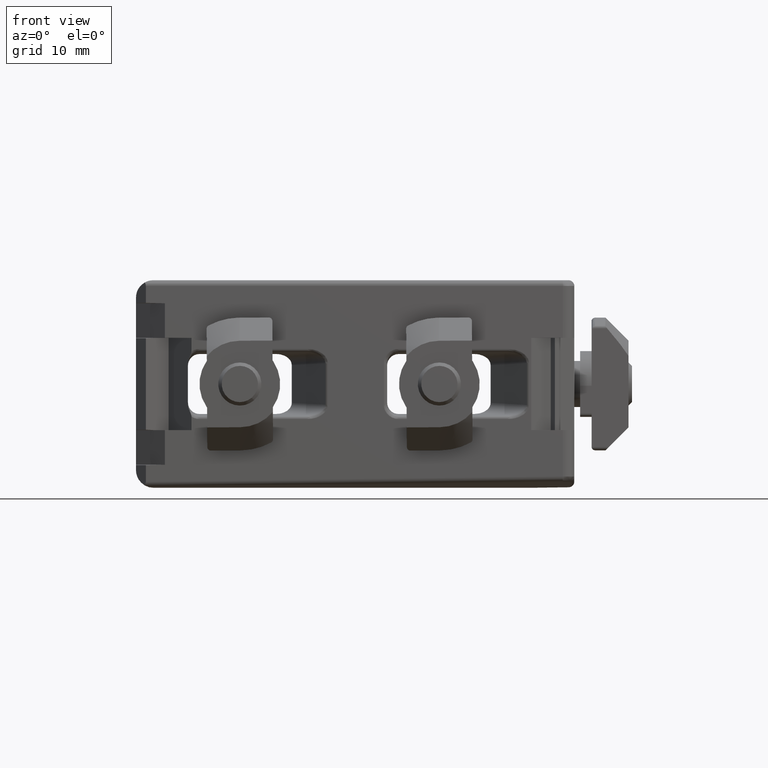
[diagram: clean part render]
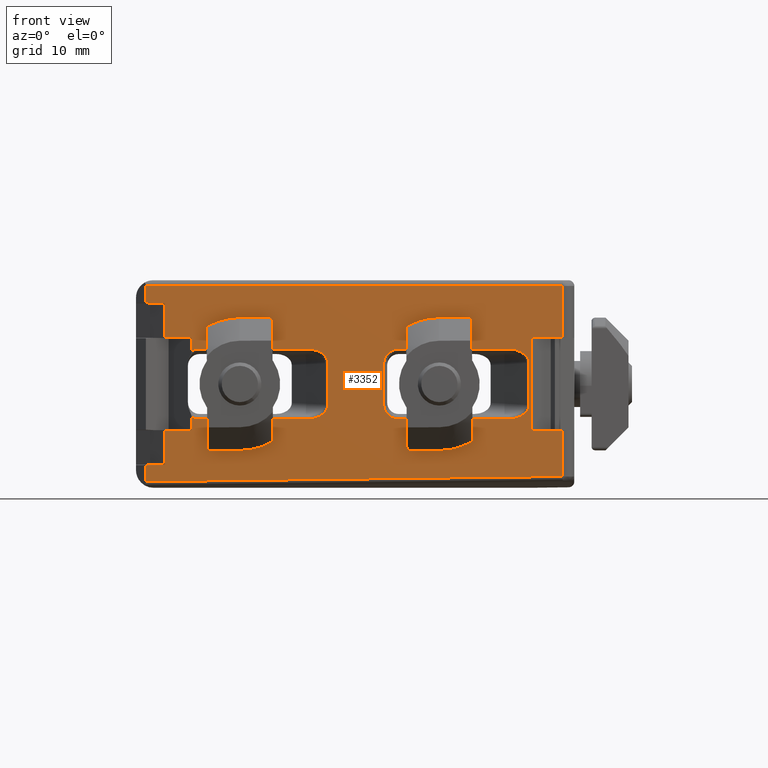
[diagram: same view with one face highlighted and labeled with its STEP entity id]
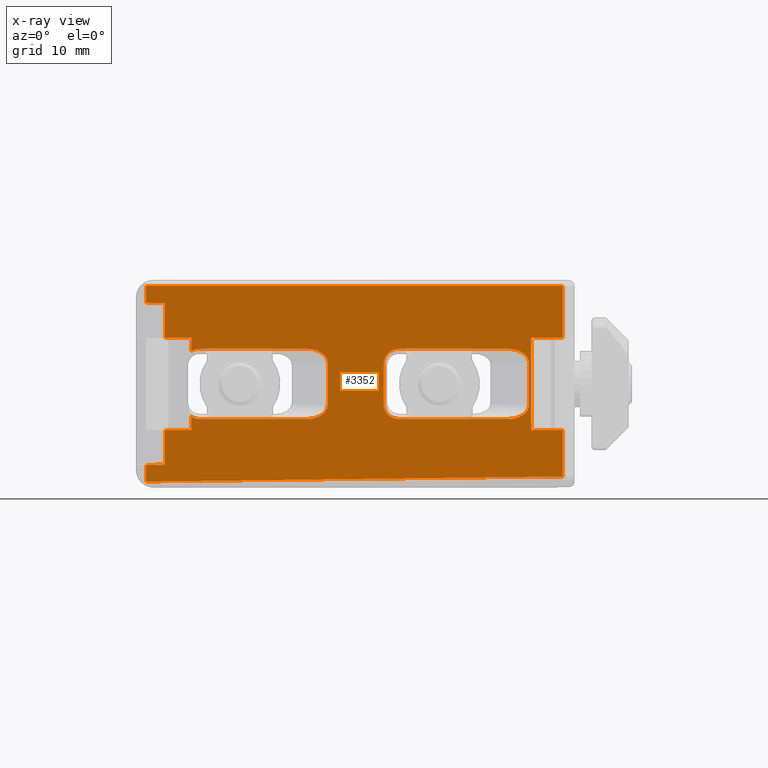
[diagram: x-ray of the same camera — body ghosted, the highlighted face saturated]
A machine part, front view. The second image highlights one B-rep face of the part: STEP entity #3352.
The next image is the same camera in x-ray: the body ghosted, the highlighted face saturated — about 0% of this face is hidden behind the body in this view.
In plain terms, the highlighted planar face has unit normal (0, 1, 0).
Its self-contained STEP definition (entity closure, byte-faithful):
#60=FACE_BOUND($,#1108,.T.);
#79=(
BOUNDED_CURVE()
B_SPLINE_CURVE(3,(#5079,#5080,#5081,#5082,#5083,#5084,#5085,#5086,#5087,
#5088),.UNSPECIFIED.,.F.,.F.)
B_SPLINE_CURVE_WITH_KNOTS((4,2,2,2,4),(1.64482745040171,2.02827264164958,
2.41171783289745,2.79516302414533,3.1786082153932),.UNSPECIFIED.)
CURVE()
GEOMETRIC_REPRESENTATION_ITEM()
RATIONAL_B_SPLINE_CURVE((1.,1.,1.,1.,1.,1.,1.,1.,1.,1.))
REPRESENTATION_ITEM($)
);
#80=(
BOUNDED_CURVE()
B_SPLINE_CURVE(3,(#5091,#5092,#5093,#5094,#5095,#5096,#5097,#5098,#5099,
#5100),.UNSPECIFIED.,.F.,.F.)
B_SPLINE_CURVE_WITH_KNOTS((4,2,2,2,4),(3.10457709178639,3.48802228303426,
3.87146747428213,4.25491266553,4.63835785677788),.UNSPECIFIED.)
CURVE()
GEOMETRIC_REPRESENTATION_ITEM()
RATIONAL_B_SPLINE_CURVE((1.,1.,1.,1.,1.,1.,1.,1.,1.,1.))
REPRESENTATION_ITEM($)
);
#81=(
BOUNDED_CURVE()
B_SPLINE_CURVE(3,(#5118,#5119,#5120,#5121,#5122,#5123,#5124,#5125,#5126,
#5127),.UNSPECIFIED.,.F.,.F.)
B_SPLINE_CURVE_WITH_KNOTS((4,2,2,2,4),(6.15182854200022E-016,0.392699081698725,
0.785398163397449,1.17809724509617,1.5707963267949),.UNSPECIFIED.)
CURVE()
GEOMETRIC_REPRESENTATION_ITEM()
RATIONAL_B_SPLINE_CURVE((1.,1.,1.,1.,1.,1.,1.,1.,1.,1.))
REPRESENTATION_ITEM($)
);
#82=(
BOUNDED_CURVE()
B_SPLINE_CURVE(3,(#5131,#5132,#5133,#5134,#5135,#5136,#5137,#5138,#5139,
#5140),.UNSPECIFIED.,.F.,.F.)
B_SPLINE_CURVE_WITH_KNOTS((4,2,2,2,4),(4.71238898038469,5.10508806208341,
5.49778714378214,5.89048622548086,6.28318530717959),.UNSPECIFIED.)
CURVE()
GEOMETRIC_REPRESENTATION_ITEM()
RATIONAL_B_SPLINE_CURVE((1.,1.,1.,1.,1.,1.,1.,1.,1.,1.))
REPRESENTATION_ITEM($)
);
#97=PLANE($,#3568);
#188=LINE($,#5037,#476);
#189=LINE($,#5041,#477);
#190=LINE($,#5043,#478);
#191=LINE($,#5045,#479);
#192=LINE($,#5047,#480);
#193=LINE($,#5049,#481);
#194=LINE($,#5051,#482);
#195=LINE($,#5053,#483);
#196=LINE($,#5055,#484);
#197=LINE($,#5057,#485);
#198=LINE($,#5059,#486);
#199=LINE($,#5061,#487);
#200=LINE($,#5063,#488);
#201=LINE($,#5065,#489);
#202=LINE($,#5067,#490);
#203=LINE($,#5069,#491);
#204=LINE($,#5071,#492);
#205=LINE($,#5073,#493);
#206=LINE($,#5077,#494);
#207=LINE($,#5090,#495);
#208=LINE($,#5116,#496);
#209=LINE($,#5129,#497);
#210=LINE($,#5141,#498);
#211=LINE($,#5144,#499);
#476=VECTOR($,#3927,9.35382318074275);
#477=VECTOR($,#3930,1.15807510946003);
#478=VECTOR($,#3931,2.30832611206846);
#479=VECTOR($,#3932,3.);
#480=VECTOR($,#3933,1.65188785851579);
#481=VECTOR($,#3934,1.42769561648364);
#482=VECTOR($,#3935,36.1542254089212);
#483=VECTOR($,#3936,4.01856263968307);
#484=VECTOR($,#3937,2.73044737829953);
#485=VECTOR($,#3938,8.);
#486=VECTOR($,#3939,2.73044737829953);
#487=VECTOR($,#3940,4.5);
#488=VECTOR($,#3941,36.151471862576);
#489=VECTOR($,#3942,1.46293000901611);
#490=VECTOR($,#3943,1.65188785851579);
#491=VECTOR($,#3944,3.);
#492=VECTOR($,#3945,2.30832611206849);
#493=VECTOR($,#3946,1.15807510946004);
#494=VECTOR($,#3949,9.35382318074275);
#495=VECTOR($,#3950,3.5766078460393);
#496=VECTOR($,#3951,9.47411315212172);
#497=VECTOR($,#3952,3.48025731613258);
#498=VECTOR($,#3953,9.47411315212172);
#499=VECTOR($,#3956,3.57991173690054);
#871=B_SPLINE_CURVE_WITH_KNOTS($,3,(#5000,#5001,#5002,#5003,#5004,#5005,
#5006,#5007,#5008,#5009,#5010,#5011,#5012),.UNSPECIFIED.,.F.,.F.,(4,3,3,
3,4),(4.78397082127156,5.17143871342924,5.53358310889399,5.89572539318426,
6.28318530717959),.UNSPECIFIED.);
#873=B_SPLINE_CURVE_WITH_KNOTS($,3,(#5102,#5103,#5104,#5105,#5106,#5107,
#5108,#5109,#5110,#5111,#5112,#5113,#5114),.UNSPECIFIED.,.F.,.F.,(4,3,3,
3,4),(3.12750626678511E-017,0.387459913995324,0.74960219828563,1.11174659375039,
1.49921448590803),.UNSPECIFIED.);
#913=FACE_OUTER_BOUND($,#1107,.T.);
#1107=EDGE_LOOP($,(#2325,#2326,#2327,#2328,#2329,#2330,#2331,#2332,#2333,
#2334,#2335,#2336,#2337,#2338,#2339,#2340,#2341,#2342,#2343,#2344,#2345,
#2346,#2347,#2348));
#1108=EDGE_LOOP($,(#2349,#2350,#2351,#2352,#2353,#2354,#2355,#2356,#2357,
#2358));
#1408=ELLIPSE($,#3559,1.431912417923,1.12629157555662);
#1413=ELLIPSE($,#3569,1.15428906573188,1.00635998173245);
#1414=ELLIPSE($,#3570,1.15428906573358,1.00635998173576);
#1415=ELLIPSE($,#3571,1.43191235337777,1.12629155014146);
#1485=VERTEX_POINT($,#4947);
#1486=VERTEX_POINT($,#4949);
#1489=VERTEX_POINT($,#4997);
#1490=VERTEX_POINT($,#4999);
#1498=VERTEX_POINT($,#5035);
#1499=VERTEX_POINT($,#5036);
#1500=VERTEX_POINT($,#5038);
#1501=VERTEX_POINT($,#5040);
#1502=VERTEX_POINT($,#5042);
#1503=VERTEX_POINT($,#5044);
#1504=VERTEX_POINT($,#5046);
#1505=VERTEX_POINT($,#5048);
#1506=VERTEX_POINT($,#5050);
#1507=VERTEX_POINT($,#5052);
#1508=VERTEX_POINT($,#5054);
#1509=VERTEX_POINT($,#5056);
#1510=VERTEX_POINT($,#5058);
#1511=VERTEX_POINT($,#5060);
#1512=VERTEX_POINT($,#5062);
#1513=VERTEX_POINT($,#5064);
#1514=VERTEX_POINT($,#5066);
#1515=VERTEX_POINT($,#5068);
#1516=VERTEX_POINT($,#5070);
#1517=VERTEX_POINT($,#5072);
#1518=VERTEX_POINT($,#5074);
#1519=VERTEX_POINT($,#5076);
#1520=VERTEX_POINT($,#5078);
#1521=VERTEX_POINT($,#5089);
#1522=VERTEX_POINT($,#5101);
#1523=VERTEX_POINT($,#5115);
#1524=VERTEX_POINT($,#5117);
#1525=VERTEX_POINT($,#5128);
#1526=VERTEX_POINT($,#5130);
#1527=VERTEX_POINT($,#5142);
#1806=EDGE_CURVE($,#1486,#1485,#1408,.T.);
#1810=EDGE_CURVE($,#1490,#1489,#871,.T.);
#1819=EDGE_CURVE($,#1498,#1499,#188,.T.);
#1820=EDGE_CURVE($,#1499,#1500,#1413,.T.);
#1821=EDGE_CURVE($,#1501,#1500,#189,.T.);
#1822=EDGE_CURVE($,#1502,#1501,#190,.T.);
#1823=EDGE_CURVE($,#1502,#1503,#191,.T.);
#1824=EDGE_CURVE($,#1504,#1503,#192,.T.);
#1825=EDGE_CURVE($,#1504,#1505,#193,.T.);
#1826=EDGE_CURVE($,#1505,#1506,#194,.T.);
#1827=EDGE_CURVE($,#1506,#1507,#195,.T.);
#1828=EDGE_CURVE($,#1508,#1507,#196,.T.);
#1829=EDGE_CURVE($,#1508,#1509,#197,.T.);
#1830=EDGE_CURVE($,#1509,#1510,#198,.T.);
#1831=EDGE_CURVE($,#1510,#1511,#199,.T.);
#1832=EDGE_CURVE($,#1511,#1512,#200,.T.);
#1833=EDGE_CURVE($,#1512,#1513,#201,.T.);
#1834=EDGE_CURVE($,#1513,#1514,#202,.T.);
#1835=EDGE_CURVE($,#1515,#1514,#203,.T.);
#1836=EDGE_CURVE($,#1515,#1516,#204,.T.);
#1837=EDGE_CURVE($,#1517,#1516,#205,.T.);
#1838=EDGE_CURVE($,#1517,#1518,#1414,.T.);
#1839=EDGE_CURVE($,#1518,#1519,#206,.T.);
#1840=EDGE_CURVE($,#1519,#1520,#79,.T.);
#1841=EDGE_CURVE($,#1520,#1521,#207,.T.);
#1842=EDGE_CURVE($,#1521,#1498,#80,.T.);
#1843=EDGE_CURVE($,#1485,#1522,#873,.T.);
#1844=EDGE_CURVE($,#1522,#1523,#208,.T.);
#1845=EDGE_CURVE($,#1523,#1524,#81,.T.);
#1846=EDGE_CURVE($,#1524,#1525,#209,.T.);
#1847=EDGE_CURVE($,#1525,#1526,#82,.T.);
#1848=EDGE_CURVE($,#1526,#1490,#210,.T.);
#1849=EDGE_CURVE($,#1489,#1527,#1415,.T.);
#1850=EDGE_CURVE($,#1527,#1486,#211,.T.);
#2325=ORIENTED_EDGE($,*,*,#1819,.T.);
#2326=ORIENTED_EDGE($,*,*,#1820,.T.);
#2327=ORIENTED_EDGE($,*,*,#1821,.F.);
#2328=ORIENTED_EDGE($,*,*,#1822,.F.);
#2329=ORIENTED_EDGE($,*,*,#1823,.T.);
#2330=ORIENTED_EDGE($,*,*,#1824,.F.);
#2331=ORIENTED_EDGE($,*,*,#1825,.T.);
#2332=ORIENTED_EDGE($,*,*,#1826,.T.);
#2333=ORIENTED_EDGE($,*,*,#1827,.T.);
#2334=ORIENTED_EDGE($,*,*,#1828,.F.);
#2335=ORIENTED_EDGE($,*,*,#1829,.T.);
#2336=ORIENTED_EDGE($,*,*,#1830,.T.);
#2337=ORIENTED_EDGE($,*,*,#1831,.T.);
#2338=ORIENTED_EDGE($,*,*,#1832,.T.);
#2339=ORIENTED_EDGE($,*,*,#1833,.T.);
#2340=ORIENTED_EDGE($,*,*,#1834,.T.);
#2341=ORIENTED_EDGE($,*,*,#1835,.F.);
#2342=ORIENTED_EDGE($,*,*,#1836,.T.);
#2343=ORIENTED_EDGE($,*,*,#1837,.F.);
#2344=ORIENTED_EDGE($,*,*,#1838,.T.);
#2345=ORIENTED_EDGE($,*,*,#1839,.T.);
#2346=ORIENTED_EDGE($,*,*,#1840,.T.);
#2347=ORIENTED_EDGE($,*,*,#1841,.T.);
#2348=ORIENTED_EDGE($,*,*,#1842,.T.);
#2349=ORIENTED_EDGE($,*,*,#1806,.T.);
#2350=ORIENTED_EDGE($,*,*,#1843,.T.);
#2351=ORIENTED_EDGE($,*,*,#1844,.T.);
#2352=ORIENTED_EDGE($,*,*,#1845,.T.);
#2353=ORIENTED_EDGE($,*,*,#1846,.T.);
#2354=ORIENTED_EDGE($,*,*,#1847,.T.);
#2355=ORIENTED_EDGE($,*,*,#1848,.T.);
#2356=ORIENTED_EDGE($,*,*,#1810,.T.);
#2357=ORIENTED_EDGE($,*,*,#1849,.T.);
#2358=ORIENTED_EDGE($,*,*,#1850,.T.);
#3352=ADVANCED_FACE($,(#913,#60),#97,.F.);
#3559=AXIS2_PLACEMENT_3D($,#4950,#3905,#3906);
#3568=AXIS2_PLACEMENT_3D($,#5034,#3925,#3926);
#3569=AXIS2_PLACEMENT_3D($,#5039,#3928,#3929);
#3570=AXIS2_PLACEMENT_3D($,#5075,#3947,#3948);
#3571=AXIS2_PLACEMENT_3D($,#5143,#3954,#3955);
#3905=DIRECTION('center_axis',(-2.39531331161889E-015,1.,5.88654346350658E-017));
#3906=DIRECTION('ref_axis',(0.998276773851941,2.39463993920688E-015,-0.0586811962025324));
#3925=DIRECTION('center_axis',(0.,1.,0.));
#3926=DIRECTION('ref_axis',(0.,0.,1.));
#3927=DIRECTION($,(-1.,0.,0.));
#3928=DIRECTION('center_axis',(-2.39759247924186E-015,1.,6.01347607093299E-017));
#3929=DIRECTION('ref_axis',(0.934861026502286,2.26276444152005E-015,-0.355013888639715));
#3930=DIRECTION($,(0.,0.,1.));
#3931=DIRECTION($,(1.,0.,0.));
#3932=DIRECTION($,(0.,0.,-1.));
#3933=DIRECTION($,(0.999748169382312,2.38075675497547E-015,0.0224409851993151));
#3934=DIRECTION($,(0.,0.,-1.));
#3935=DIRECTION($,(0.999923838878746,2.38117508666448E-015,0.0123416547509368));
#3936=DIRECTION($,(0.,0.,1.));
#3937=DIRECTION($,(1.,0.,0.));
#3938=DIRECTION($,(0.,0.,1.));
#3939=DIRECTION($,(1.,0.,0.));
#3940=DIRECTION($,(0.,0.,1.));
#3941=DIRECTION($,(-1.,0.,0.));
#3942=DIRECTION($,(0.,0.,-1.));
#3943=DIRECTION($,(0.999748169382312,2.38075675497547E-015,-0.0224409851993151));
#3944=DIRECTION($,(0.,0.,1.));
#3945=DIRECTION($,(1.,0.,0.));
#3946=DIRECTION($,(0.,0.,1.));
#3947=DIRECTION('center_axis',(-2.3610054883285E-015,1.,6.29124732271768E-017));
#3948=DIRECTION('ref_axis',(0.934861026500494,2.18487721262746E-015,0.355013888644433));
#3949=DIRECTION($,(1.,0.,0.));
#3950=DIRECTION($,(0.,0.,-1.));
#3951=DIRECTION($,(-1.,0.,0.));
#3952=DIRECTION($,(0.,0.,1.));
#3953=DIRECTION($,(1.,0.,0.));
#3954=DIRECTION('center_axis',(-2.36291360878531E-015,1.,-5.72883958966303E-017));
#3955=DIRECTION('ref_axis',(0.998276773695475,2.36220352565156E-015,0.0586811988643096));
#3956=DIRECTION($,(0.,0.,-1.));
#4947=CARTESIAN_POINT('',(-3.92424956972963,-9.38680463776862E-015,-1.83323319857511));
#4949=CARTESIAN_POINT('',(-3.92319303375948,-9.34252104904215E-015,-1.78995586845027));
#4950=CARTESIAN_POINT('Origin',(-5.35416505250662,-1.27970171664036E-014,
-1.75794946127183));
#4997=CARTESIAN_POINT('',(-3.92424956972963,-9.60364507226572E-015,1.83323319857511));
#4999=CARTESIAN_POINT('',(-5.75639550064159,-1.37080295740178E-014,3.04191270786359));
#5000=CARTESIAN_POINT('Ctrl Pts',(-5.75639550064159,-1.39818712163731E-014,
3.04191270786359));
#5001=CARTESIAN_POINT('Ctrl Pts',(-5.53278435057012,-1.34494860989137E-014,
3.04191270785801));
#5002=CARTESIAN_POINT('Ctrl Pts',(-5.29271039137049,-1.28459004598137E-014,
3.01393526344642));
#5003=CARTESIAN_POINT('Ctrl Pts',(-5.06414502566832,-1.23014933742921E-014,
2.95154224992796));
#5004=CARTESIAN_POINT('Ctrl Pts',(-4.85051786362025,-1.18096568821763E-014,
2.89322701757144));
#5005=CARTESIAN_POINT('Ctrl Pts',(-4.64783885541821,-1.13687143104892E-014,
2.80493139595309));
#5006=CARTESIAN_POINT('Ctrl Pts',(-4.47813715510773,-1.09653497219753E-014,
2.69297799508258));
#5007=CARTESIAN_POINT('Ctrl Pts',(-4.30843644409848,-1.05603639683613E-014,
2.58102524686102));
#5008=CARTESIAN_POINT('Ctrl Pts',(-4.17230203898209,-1.02100156056378E-014,
2.44580379461117));
#5009=CARTESIAN_POINT('Ctrl Pts',(-4.07973377017922,-9.99024539309612E-015,
2.30211924647191));
#5010=CARTESIAN_POINT('Ctrl Pts',(-3.98069398657773,-9.73834199586941E-015,
2.14838960737827));
#5011=CARTESIAN_POINT('Ctrl Pts',(-3.9316989445029,-9.61129010639919E-015,
1.98566240847358));
#5012=CARTESIAN_POINT('Ctrl Pts',(-3.92424956972963,-9.59193661997926E-015,
1.83323319857511));
#5034=CARTESIAN_POINT('Origin',(0.,0.,9.));
#5035=CARTESIAN_POINT('',(-23.1461768192573,-5.51192975410497E-014,-3.04191270786359));
#5036=CARTESIAN_POINT('',(-32.5,-7.73940847368675E-014,-3.04191270786359));
#5037=CARTESIAN_POINT($,(-23.1461768192573,-7.73940847368674E-014,-3.04191270786359));
#5038=CARTESIAN_POINT('',(-33.191673886656,-5.72492359720601E-014,-2.84192489053998));
#5039=CARTESIAN_POINT('Origin',(-32.6034919272537,-7.75744241350076E-014,
-2.01573337619113));
#5040=CARTESIAN_POINT('',(-33.1916738879315,-1.38777878078145E-014,-4.));
#5041=CARTESIAN_POINT($,(-33.1916738879315,-1.38777878078145E-014,-4.));
#5042=CARTESIAN_POINT('',(-35.5,-2.63420227360954E-014,-4.));
#5043=CARTESIAN_POINT($,(-35.5,-1.38777878078145E-014,-4.));
#5044=CARTESIAN_POINT('',(-35.5,-5.73496870652501E-015,-7.));
#5045=CARTESIAN_POINT($,(-35.5,-5.73496870652501E-015,-4.));
#5046=CARTESIAN_POINT('',(-37.151471862576,-8.84708972748171E-014,-7.03706999098389));
#5047=CARTESIAN_POINT($,(-37.151471862576,-8.86216517785834E-014,-7.03706999098388));
#5048=CARTESIAN_POINT('',(-37.151471862576,-8.84708972748171E-014,-8.46476560746753));
#5049=CARTESIAN_POINT($,(-37.151471862576,-8.84708972748171E-014,-7.03706999098389));
#5050=CARTESIAN_POINT('',(-0.999999999999998,-2.38135645344207E-015,-8.01856263968307));
#5051=CARTESIAN_POINT($,(-37.151471862576,-8.84708972748172E-014,-8.46476560746753));
#5052=CARTESIAN_POINT('',(-0.999999999999999,-2.16160498731835E-015,-4.));
#5053=CARTESIAN_POINT($,(-0.999999999999998,-2.38135645344207E-015,-8.01856263968307));
#5054=CARTESIAN_POINT('',(-3.73044737829953,-8.06375365786094E-015,-4.));
#5055=CARTESIAN_POINT($,(-3.73044737829953,-8.06375365786094E-015,-4.));
#5056=CARTESIAN_POINT('',(-3.73044737829953,-8.06375365786094E-015,4.));
#5057=CARTESIAN_POINT($,(-3.73044737829953,-8.06375365786094E-015,-4.));
#5058=CARTESIAN_POINT('',(-0.999999999999999,-2.16160498731835E-015,4.));
#5059=CARTESIAN_POINT($,(-3.73044737829953,-8.06375365786094E-015,4.));
#5060=CARTESIAN_POINT('',(-0.999999999999998,-2.38135645344207E-015,8.5));
#5061=CARTESIAN_POINT($,(-0.999999999999998,-2.38135645344207E-015,4.));
#5062=CARTESIAN_POINT('',(-37.151471862576,-8.84708972748171E-014,8.5));
#5063=CARTESIAN_POINT($,(-0.999999999999998,0.,8.5));
#5064=CARTESIAN_POINT('',(-37.151471862576,-8.84708972748171E-014,7.03706999098388));
#5065=CARTESIAN_POINT($,(-37.151471862576,-8.84708972748171E-014,8.5));
#5066=CARTESIAN_POINT('',(-35.5,-5.73496870652501E-015,7.));
#5067=CARTESIAN_POINT($,(-37.151471862576,-8.84708972748172E-014,7.03706999098389));
#5068=CARTESIAN_POINT('',(-35.5,-5.73496870652501E-015,4.));
#5069=CARTESIAN_POINT($,(-35.5,-5.73496870652501E-015,4.));
#5070=CARTESIAN_POINT('',(-33.1916738879315,-1.38777878078145E-014,4.));
#5071=CARTESIAN_POINT($,(-35.5,-1.38777878078145E-014,4.));
#5072=CARTESIAN_POINT('',(-33.191673886656,-5.71988410778177E-014,2.84192489053996));
#5073=CARTESIAN_POINT($,(-33.1916738879315,-1.38777878078145E-014,2.84236046143461));
#5074=CARTESIAN_POINT('',(-32.5,-7.73940847368675E-014,3.04191270786359));
#5075=CARTESIAN_POINT('Origin',(-32.6034919272539,-7.74186871095599E-014,
2.01573337618753));
#5076=CARTESIAN_POINT('',(-23.1461768192573,-5.51192975410497E-014,3.04191270786359));
#5077=CARTESIAN_POINT($,(-32.5,-3.3749997260092E-031,3.04191270786359));
#5078=CARTESIAN_POINT('',(-21.3757359312881,-5.09032467070465E-014,1.78830392301965));
#5079=CARTESIAN_POINT('Ctrl Pts',(-23.1461768192573,-5.49560397189452E-014,
3.04191270786359));
#5080=CARTESIAN_POINT('Ctrl Pts',(-22.9113066371027,-5.44009282066327E-014,
3.04191270785697));
#5081=CARTESIAN_POINT('Ctrl Pts',(-22.6782998527069,-5.38535910569739E-014,
3.00962730289365));
#5082=CARTESIAN_POINT('Ctrl Pts',(-22.24926356127,-5.28319027155997E-014,
2.88513021241959));
#5083=CARTESIAN_POINT('Ctrl Pts',(-22.0534335090653,-5.23757887356885E-014,
2.79296304841871));
#5084=CARTESIAN_POINT('Ctrl Pts',(-21.7273214190862,-5.15991996056714E-014,
2.56205052057327));
#5085=CARTESIAN_POINT('Ctrl Pts',(-21.5971559947717,-5.12752723424757E-014,
2.42338772502603));
#5086=CARTESIAN_POINT('Ctrl Pts',(-21.4213318185079,-5.08565723056588E-014,
2.11959692951097));
#5087=CARTESIAN_POINT('Ctrl Pts',(-21.3757359313152,-5.07298196505968E-014,
1.9546101345489));
#5088=CARTESIAN_POINT('Ctrl Pts',(-21.3757359312881,-5.07306328022261E-014,
1.78830392301965));
#5089=CARTESIAN_POINT('',(-21.3757359312881,-5.09032467070465E-014,-1.78830392301965));
#5090=CARTESIAN_POINT($,(-21.3757359312881,-5.09032467070465E-014,1.78830392301965));
#5091=CARTESIAN_POINT('Ctrl Pts',(-21.3757359312881,-5.11223008370365E-014,
-1.78830392301965));
#5092=CARTESIAN_POINT('Ctrl Pts',(-21.3757359313152,-5.11223008370365E-014,
-1.9546101345489));
#5093=CARTESIAN_POINT('Ctrl Pts',(-21.4213318185079,-5.13444632832773E-014,
-2.11959692951097));
#5094=CARTESIAN_POINT('Ctrl Pts',(-21.5971559947717,-5.17631633200941E-014,
-2.42338772502603));
#5095=CARTESIAN_POINT('Ctrl Pts',(-21.7273214190858,-5.20328804746647E-014,
-2.56205052057327));
#5096=CARTESIAN_POINT('Ctrl Pts',(-22.0534335090656,-5.28094696046835E-014,
-2.79296304841871));
#5097=CARTESIAN_POINT('Ctrl Pts',(-22.2492635612702,-5.32655835845945E-014,
-2.88513021241954));
#5098=CARTESIAN_POINT('Ctrl Pts',(-22.6782998527067,-5.42872719259676E-014,
-3.0096273028937));
#5099=CARTESIAN_POINT('Ctrl Pts',(-22.9113066371029,-5.48454510973517E-014,
-3.04191270785712));
#5100=CARTESIAN_POINT('Ctrl Pts',(-23.1461768192573,-5.54059836205267E-014,
-3.04191270786359));
#5101=CARTESIAN_POINT('',(-5.75639550064159,-1.37080295740178E-014,-3.04191270786359));
#5102=CARTESIAN_POINT('Ctrl Pts',(-3.92424956972963,-9.38485400503453E-015,
-1.83323319857511));
#5103=CARTESIAN_POINT('Ctrl Pts',(-3.9316989445029,-9.40259362172071E-015,
-1.98566240847358));
#5104=CARTESIAN_POINT('Ctrl Pts',(-3.9806939865777,-9.52757930048944E-015,
-2.1483896073783));
#5105=CARTESIAN_POINT('Ctrl Pts',(-4.07973377017922,-9.76133976333429E-015,
-2.30211924647191));
#5106=CARTESIAN_POINT('Ctrl Pts',(-4.17230203898213,-9.98878540808436E-015,
-2.44580379461115));
#5107=CARTESIAN_POINT('Ctrl Pts',(-4.30843644409843,-1.02871283007849E-014,
-2.58102524686099));
#5108=CARTESIAN_POINT('Ctrl Pts',(-4.47813715510773,-1.06918597239658E-014,
-2.69297799508258));
#5109=CARTESIAN_POINT('Ctrl Pts',(-4.64783885541826,-1.10716401269467E-014,
-2.80493139595311));
#5110=CARTESIAN_POINT('Ctrl Pts',(-4.85051786362032,-1.1567548134529E-014,
-2.89322701757141));
#5111=CARTESIAN_POINT('Ctrl Pts',(-5.06414502566831,-1.20758437971435E-014,
-2.95154224992796));
#5112=CARTESIAN_POINT('Ctrl Pts',(-5.29271039137037,-1.26567534865513E-014,
-3.01393526344644));
#5113=CARTESIAN_POINT('Ctrl Pts',(-5.53278435057014,-1.32639120165881E-014,
-3.04191270785816));
#5114=CARTESIAN_POINT('Ctrl Pts',(-5.75639550064159,-1.37991831503093E-014,
-3.04191270786359));
#5115=CARTESIAN_POINT('',(-15.2305086527633,-3.62692700694633E-014,-3.04191270786359));
#5116=CARTESIAN_POINT($,(-5.75639550064159,-3.62692700694633E-014,-3.04191270786359));
#5117=CARTESIAN_POINT('',(-16.5305086527633,-3.9365033458938E-014,-1.74012865806629));
#5118=CARTESIAN_POINT('Ctrl Pts',(-15.2305086527633,-3.6498581934552E-014,
-3.04191270786359));
#5119=CARTESIAN_POINT('Ctrl Pts',(-15.4007089243088,-3.69038894495743E-014,
-3.04191270784418));
#5120=CARTESIAN_POINT('Ctrl Pts',(-15.5707809179285,-3.72474275801511E-014,
-3.00803074706308));
#5121=CARTESIAN_POINT('Ctrl Pts',(-15.8852133117474,-3.79962031903429E-014,
-2.87760984778424));
#5122=CARTESIAN_POINT('Ctrl Pts',(-16.0294194005811,-3.83652634285017E-014,
-2.78112218678531));
#5123=CARTESIAN_POINT('Ctrl Pts',(-16.2700755360306,-3.89383514697148E-014,
-2.54013578785154));
#5124=CARTESIAN_POINT('Ctrl Pts',(-16.366430964031,-3.92014623547364E-014,
-2.39573179839877));
#5125=CARTESIAN_POINT('Ctrl Pts',(-16.496673126025,-3.95116153677112E-014,
-2.08086789448287));
#5126=CARTESIAN_POINT('Ctrl Pts',(-16.5305086527441,-3.95610239084636E-014,
-1.91056250329565));
#5127=CARTESIAN_POINT('Ctrl Pts',(-16.5305086527633,-3.95613853091878E-014,
-1.74012865806629));
#5128=CARTESIAN_POINT('',(-16.5305086527633,-3.9365033458938E-014,1.74012865806629));
#5129=CARTESIAN_POINT($,(-16.5305086527633,-3.9365033458938E-014,-1.74012865806629));
#5130=CARTESIAN_POINT('',(-15.2305086527633,-3.62692700694633E-014,3.04191270786359));
#5131=CARTESIAN_POINT('Ctrl Pts',(-16.5305086527633,-3.95863897217907E-014,
1.74012865806629));
#5132=CARTESIAN_POINT('Ctrl Pts',(-16.5305086527441,-3.95863897217907E-014,
1.91056250329564));
#5133=CARTESIAN_POINT('Ctrl Pts',(-16.4966731260248,-3.95116153677106E-014,
2.08086789448289));
#5134=CARTESIAN_POINT('Ctrl Pts',(-16.3664309640312,-3.9201462354737E-014,
2.39573179839875));
#5135=CARTESIAN_POINT('Ctrl Pts',(-16.2700755360307,-3.88841413610907E-014,
2.54013578785154));
#5136=CARTESIAN_POINT('Ctrl Pts',(-16.029419400581,-3.83110533198773E-014,
2.78112218678531));
#5137=CARTESIAN_POINT('Ctrl Pts',(-15.8852133117473,-3.8050413298967E-014,
2.87760984778426));
#5138=CARTESIAN_POINT('Ctrl Pts',(-15.5707809179286,-3.73016376887756E-014,
3.00803074706305));
#5139=CARTESIAN_POINT('Ctrl Pts',(-15.4007089243087,-3.68907920704487E-014,
3.04191270784428));
#5140=CARTESIAN_POINT('Ctrl Pts',(-15.2305086527634,-3.64853809260691E-014,
3.04191270786359));
#5141=CARTESIAN_POINT($,(-15.2305086527633,-8.5938129347534E-031,3.04191270786359));
#5142=CARTESIAN_POINT('',(-3.92319303375948,-9.34252104904215E-015,1.78995586845027));
#5143=CARTESIAN_POINT('Origin',(-5.35416498798716,-1.29934475425377E-014,
1.75794946360555));
#5144=CARTESIAN_POINT($,(-3.92319303375948,-9.34252104904215E-015,1.78995586845027));